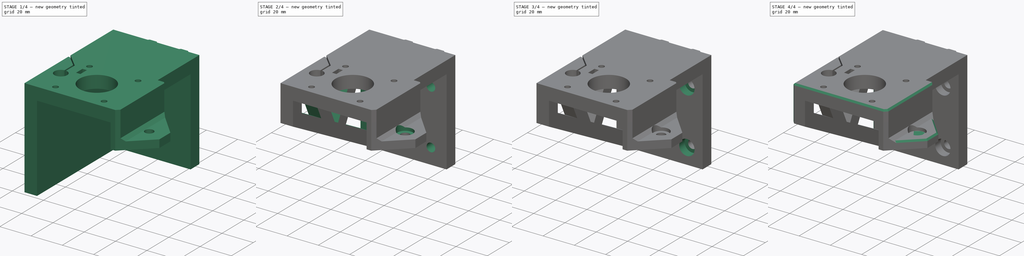
[diagram: build sequence overview — one tinted view per stage of 4, left to right]
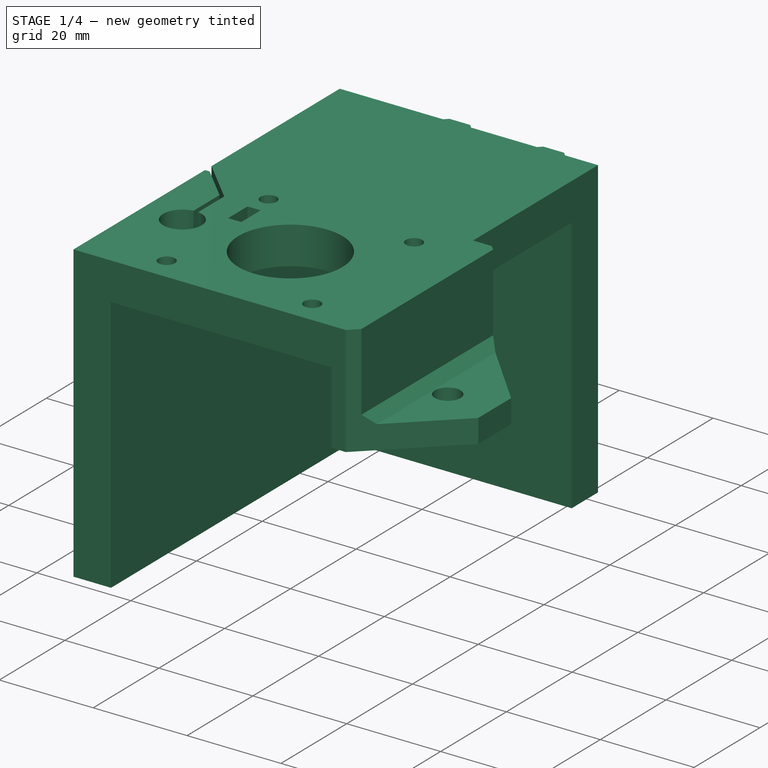
[diagram: stage 1 of 4 — iso view after this stage's code; geometry added in this stage tinted green]
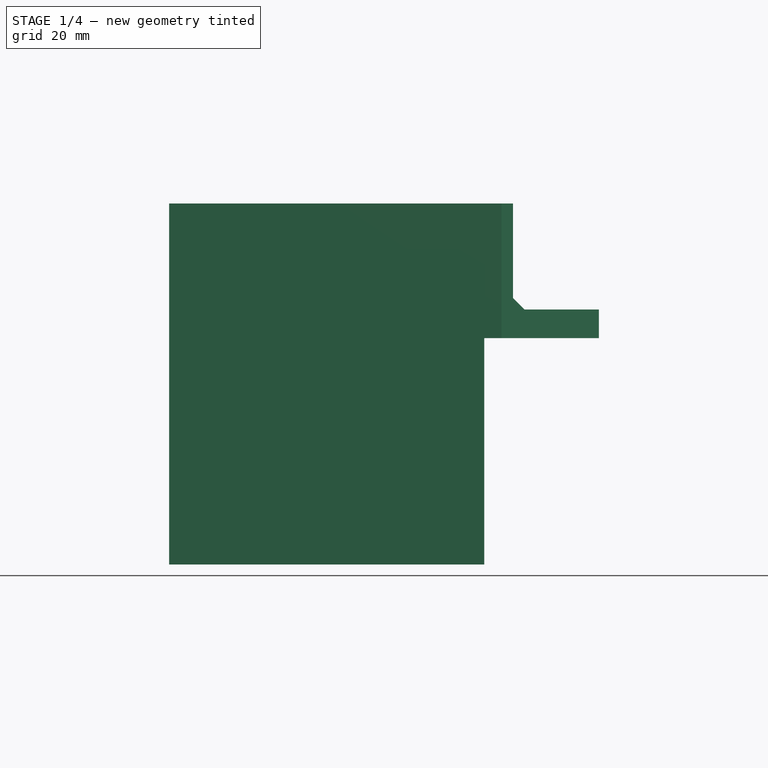
[diagram: stage 1 of 4 — front view after this stage's code; geometry added in this stage tinted green]
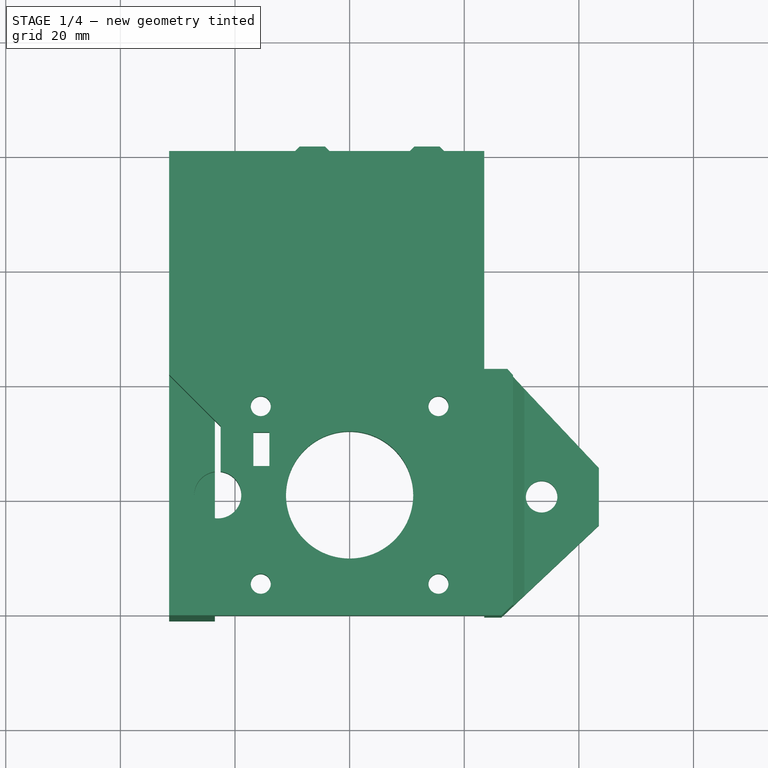
[diagram: stage 1 of 4 — top view after this stage's code; geometry added in this stage tinted green]
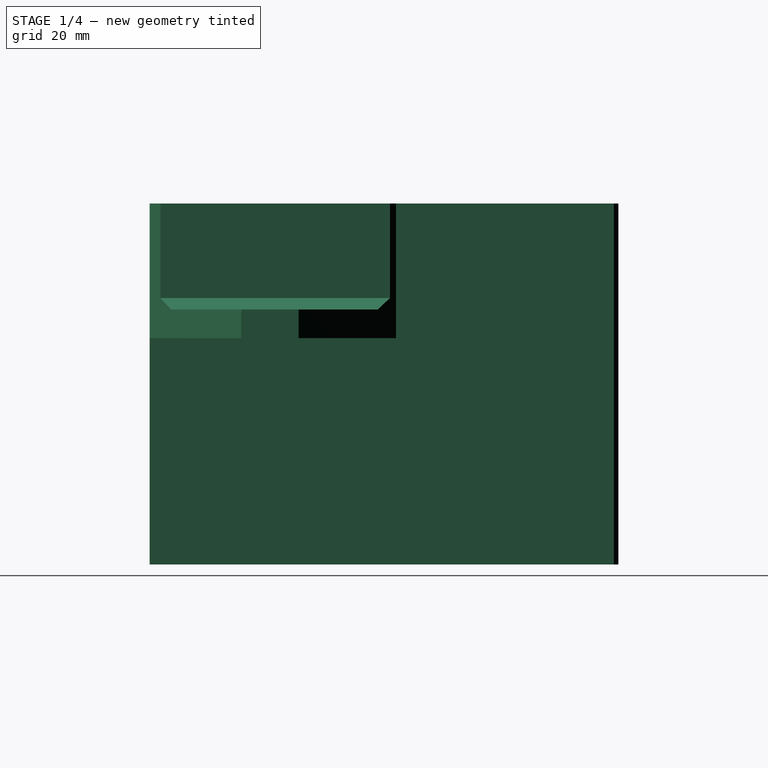
[diagram: stage 1 of 4 — right view after this stage's code; geometry added in this stage tinted green]
FCSTD DOCUMENT  (FreeCAD 0.19R24276 (Git))
Label: _Z_Motor_Mount_L
License: All rights reserved
LicenseURL: http://en.wikipedia.org/wiki/All_rights_reserved
objects: Sketcher::SketchObject×11, PartDesign::Pocket×8, PartDesign::Pad×2, PartDesign::Chamfer×2, PartDesign::Hole×1, PartDesign::Body×1
note: 38 computed .brp shape members not serialized (recipe doc carries the construction recipe); baked Part::Feature solids carry a one-line shape summary decoded from their .brp

FEATURE [Sketcher::SketchObject] Sketch
  FullyConstrained = true
  MapMode = 5
  Support = -> [XY_Plane]
  sketch-geometry (28):
    g0: LineSegment StartX=-6.5 StartY=60.8 StartZ=0 EndX=-6.5 EndY=60 EndZ=0
    g1: LineSegment StartX=13.5 StartY=60.8 StartZ=0 EndX=13.5 EndY=60 EndZ=0
    g2: Circle CenterX=0 CenterY=0 CenterZ=0 NormalX=0 NormalY=0 NormalZ=1 AngleXU=0 Radius=11.1
    g3: LineSegment StartX=-31.5 StartY=60 StartZ=0 EndX=-9.5 EndY=60 EndZ=0
    g4: LineSegment StartX=23.5 StartY=60 StartZ=0 EndX=23.5 EndY=22 EndZ=0
    g5: LineSegment StartX=26.5 StartY=-21 StartZ=0 EndX=-31.5 EndY=-21 EndZ=0
    g6: LineSegment StartX=-31.5 StartY=-21 StartZ=0 EndX=-31.5 EndY=60 EndZ=0
    g7: LineSegment StartX=10.5 StartY=60 StartZ=0 EndX=11.3 EndY=60.8 EndZ=0
    g8: LineSegment StartX=11.3 StartY=60.8 StartZ=0 EndX=15.7 EndY=60.8 EndZ=0
    g9: LineSegment StartX=15.7 StartY=60.8 StartZ=0 EndX=16.5 EndY=60 EndZ=0
    g10: LineSegment StartX=-9.5 StartY=60 StartZ=0 EndX=-8.7 EndY=60.8 EndZ=0
    g11: LineSegment StartX=-8.7 StartY=60.8 StartZ=0 EndX=-4.3 EndY=60.8 EndZ=0
    g12: LineSegment StartX=-4.3 StartY=60.8 StartZ=0 EndX=-3.5 EndY=60 EndZ=0
    g13: LineSegment StartX=-3.5 StartY=60 StartZ=0 EndX=10.5 EndY=60 EndZ=0
    g14: LineSegment StartX=16.5 StartY=60 StartZ=0 EndX=23.5 EndY=60 EndZ=0
    g15: LineSegment StartX=-15.5 StartY=15.5 StartZ=0 EndX=15.5 EndY=15.5 EndZ=0
    g16: LineSegment StartX=15.5 StartY=15.5 StartZ=0 EndX=15.5 EndY=-15.5 EndZ=0
    g17: LineSegment StartX=15.5 StartY=-15.5 StartZ=0 EndX=-15.5 EndY=-15.5 EndZ=0
    g18: LineSegment StartX=-15.5 StartY=-15.5 StartZ=0 EndX=-15.5 EndY=15.5 EndZ=0
    g19: Circle CenterX=-15.5 CenterY=-15.5 CenterZ=0 NormalX=0 NormalY=0 NormalZ=1 AngleXU=0 Radius=1.75
    g20: Circle CenterX=15.5 CenterY=-15.5 CenterZ=0 NormalX=0 NormalY=0 NormalZ=1 AngleXU=0 Radius=1.75
    g21: Circle CenterX=15.5 CenterY=15.5 CenterZ=0 NormalX=0 NormalY=0 NormalZ=1 AngleXU=0 Radius=1.75
    g22: Circle CenterX=-15.5 CenterY=15.5 CenterZ=0 NormalX=0 NormalY=0 NormalZ=1 AngleXU=0 Radius=1.75
    g23: LineSegment StartX=43.5 StartY=-5 StartZ=0 EndX=43.5 EndY=5 EndZ=0
    g24: LineSegment StartX=23.5 StartY=22 StartZ=0 EndX=27.5 EndY=22 EndZ=0
    g25: LineSegment StartX=27.5 StartY=22 StartZ=0 EndX=43.5 EndY=5 EndZ=0
    g26: LineSegment StartX=43.5 StartY=-5 StartZ=0 EndX=26.5 EndY=-21 EndZ=0
    g27: Circle CenterX=33.5 CenterY=0 CenterZ=0 NormalX=0 NormalY=0 NormalZ=1 AngleXU=0 Radius=2.75
  constraints (73):
    c: Vertical(g0)
    c: Diameter(g2) = 22.2
    c: Coincident(g5,g6)
    c: Coincident(g6,g3)
    c: Horizontal(g3)
    c: Horizontal(g5)
    c: Vertical(g4)
    c: Vertical(g6)
    c: DistanceY(g14) = 60
    c: Coincident(g7,g8)
    c: Horizontal(g8)
    c: Coincident(g8,g9)
    c: Coincident(g10,g11)
    c: Coincident(g11,g12)
    c: Coincident(g3,g10)
    c: Tangent(g3,g13)
    c: Coincident(g12,g13)
    c: Tangent(g13,g14)
    c: Coincident(g9,g14)
    c: Coincident(g7,g13)
    c: Symmetric(g9,g7,g1)
    c: Symmetric(g12,g3,g0)
    c: PointOnObject(g0,g11)
    c: PointOnObject(g1,g8)
    c: Symmetric(g7,g8,g1)
    c: Symmetric(g10,g11,g0)
    c: Perpendicular(g12,g10)
    c: Equal(g11,g8)
    c: Equal(g1,g0)
    c: DistanceX(g1,g4) = 10
    c: DistanceX(g0,g1) = 20
    c: DistanceY(g12,g11) = 0.8
    c: DistanceX(g3,g12) = 6
    c: Coincident(g2,g-1)
    c: DistanceY(g6,g6) = 81
    c: Coincident(g15,g16)
    c: Coincident(g16,g17)
    c: Coincident(g17,g18)
    c: Coincident(g18,g15)
    c: Horizontal(g15)
    c: Horizontal(g17)
    c: Vertical(g16)
    c: Vertical(g18)
    c: Equal(g17,g16)
    c: Symmetric(g17,g15,g2)
    c: Coincident(g19,g17)
    c: Coincident(g20,g16)
    c: Coincident(g21,g15)
    c: Coincident(g22,g15)
    c: Diameter(g19) = 3.5
    c: Equal(g19,g20)
    c: Equal(g20,g21)
    c: Equal(g21,g22)
    c: Perpendicular(g9,g7)
    c: DistanceX(g15,g15) = 31
    c: Symmetric(g23,g23,g-1)
    c: DistanceY(g5,g4) = 43
    c: DistanceX(g-1,g4) = 23.5
    c: DistanceX(g3,g4) = 55
    c: Coincident(g4,g14)
    c: DistanceX(g-1,g23) = 43.5
    c: Coincident(g24,g4)
    c: Horizontal(g24)
    c: Coincident(g25,g24)
    c: Coincident(g25,g23)
    c: Coincident(g26,g23)
    c: Coincident(g26,g5)
    c: Perpendicular(g26,g25)
    c: DistanceX(g24,g24) = 4
    c: Equal(g26,g25)
    c: PointOnObject(g27,g-1)
    c: Diameter(g27) = 5.5
    c: DistanceX(g4,g27) = 10
FEATURE [PartDesign::Pad] Pad
  AllowMultiFace = false
  Direction = (1,1,1)
  Length = 63
  Length2 = 100
  Profile = -> Sketch
  Type = 0
FEATURE [Sketcher::SketchObject] Sketch001
  AttachmentOffset = pos=(0,0,21) rot=(0,0,1;0rad)
  FullyConstrained = true
  MapMode = 5
  Placement = pos=(0,-21,-4.7e-15) rot=(1,0,0;1.5708rad)
  Support = -> [XZ_Plane]
  sketch-geometry (12):
    g0: LineSegment StartX=23.5 StartY=55 StartZ=0 EndX=-23.5 EndY=55 EndZ=0
    g1: LineSegment StartX=-23.5 StartY=55 StartZ=0 EndX=-23.5 EndY=0 EndZ=0
    g2: LineSegment StartX=23.5 StartY=39.5 StartZ=0 EndX=23.5 EndY=55 EndZ=0
    g3: LineSegment StartX=23.5 StartY=39.5 StartZ=0 EndX=44.5 EndY=39.5 EndZ=0
    g4: LineSegment StartX=46.5 StartY=64 StartZ=0 EndX=46.5 EndY=0 EndZ=0
    g5: LineSegment StartX=-23.5 StartY=0 StartZ=0 EndX=46.5 EndY=0 EndZ=0
    g6: LineSegment StartX=28.5 StartY=64 StartZ=0 EndX=46.5 EndY=64 EndZ=0
    g7: LineSegment StartX=30.5 StartY=44.5 StartZ=0 EndX=44.5 EndY=44.5 EndZ=0
    g8: LineSegment StartX=44.5 StartY=44.5 StartZ=0 EndX=44.5 EndY=39.5 EndZ=0
    g9: LineSegment StartX=28.5 StartY=64 StartZ=0 EndX=28.5 EndY=46.5 EndZ=0
    g10: LineSegment StartX=23.5 StartY=55 StartZ=0 EndX=28.5 EndY=55 EndZ=0
    g11: LineSegment StartX=28.5 StartY=46.5 StartZ=0 EndX=30.5 EndY=44.5 EndZ=0
  constraints (35):
    c: Coincident(g0,g1)
    c: Coincident(g2,g0)
    c: Vertical(g1)
    c: Vertical(g2)
    c: Horizontal(g3)
    c: Vertical(g4)
    c: Coincident(g3,g2)
    c: Symmetric(g0,g0,g-2)
    c: DistanceX(g0,g0) = 47
    c: DistanceY(g1,g1) = 55
    c: Coincident(g5,g1)
    c: Coincident(g5,g4)
    c: Horizontal(g5)
    c: PointOnObject(g-1,g5)
    c: DistanceX(g3,g4) = 23
    c: Horizontal(g6)
    c: Horizontal(g7)
    c: Coincident(g7,g8)
    c: Vertical(g8)
    c: Coincident(g4,g6)
    c: DistanceY(g4,g3) = 39.5
    c: Coincident(g8,g3)
    c: DistanceX(g3,g3) = 21
    c: DistanceY(g8,g8) = 5
    c: Coincident(g9,g6)
    c: Vertical(g9)
    c: Coincident(g10,g0)
    c: PointOnObject(g10,g9)
    c: Horizontal(g10)
    c: Equal(g8,g10)
    c: DistanceY(g4,g4) = 64
    c: Coincident(g11,g7)
    c: Angle(g7,g11) = 2.35619
    c: DistanceY(g7,g9) = 2
    c: Coincident(g11,g9)
FEATURE [Sketcher::SketchObject] Sketch002
  AttachmentOffset = pos=(0,0,63) rot=(0,0,1;0rad)
  FullyConstrained = true
  MapMode = 5
  Placement = pos=(0,0,63) rot=(0,0,1;0rad)
  Support = -> [XY_Plane]
  expr: .AttachmentOffset.Base.z = Pad.Length
  sketch-geometry (13):
    g0: ArcOfCircle CenterX=-23 CenterY=0 CenterZ=0 NormalX=0 NormalY=0 NormalZ=1 AngleXU=0 Radius=4.1 StartAngle=1.69305 EndAngle=7.73173
    g1: LineSegment StartX=-31.5 StartY=21 StartZ=0 EndX=-31.5 EndY=19 EndZ=0
    g2: LineSegment StartX=-31.5 StartY=19 StartZ=0 EndX=-30.5 EndY=19 EndZ=0
    g3: LineSegment StartX=-30.5 StartY=19 StartZ=0 EndX=-23.5 EndY=12 EndZ=0
    g4: LineSegment StartX=-23.5 StartY=12 StartZ=0 EndX=-23.5 EndY=4.0694 EndZ=0
    g5: LineSegment StartX=-22.5 StartY=4.0694 StartZ=0 EndX=-22.5 EndY=12 EndZ=0
    g6: LineSegment StartX=-22.5 StartY=12 StartZ=0 EndX=-31.5 EndY=21 EndZ=0
    g7: LineSegment StartX=-23 StartY=0 StartZ=0 EndX=-23 EndY=12 EndZ=0
    g8: LineSegment StartX=-16.8 StartY=10.95 StartZ=0 EndX=-14 EndY=10.95 EndZ=0
    g9: LineSegment StartX=-14 StartY=10.95 StartZ=0 EndX=-14 EndY=5.05 EndZ=0
    g10: LineSegment StartX=-14 StartY=5.05 StartZ=0 EndX=-16.8 EndY=5.05 EndZ=0
    g11: LineSegment StartX=-16.8 StartY=5.05 StartZ=0 EndX=-16.8 EndY=10.95 EndZ=0
    g12: LineSegment StartX=-16.8 StartY=8 StartZ=0 EndX=0 EndY=8 EndZ=0
  constraints (39):
    c: PointOnObject(g0,g-1)
    c: DistanceX(g0,g-1) = 23
    c: Diameter(g0) = 8.2
    c: Vertical(g1)
    c: Coincident(g1,g2)
    c: Horizontal(g2)
    c: Coincident(g2,g3)
    c: Coincident(g3,g4)
    c: Vertical(g4)
    c: Vertical(g5)
    c: Coincident(g5,g6)
    c: Coincident(g6,g1)
    c: Coincident(g7,g0)
    c: Vertical(g7)
    c: Horizontal(g7,g3)
    c: Symmetric(g3,g5,g7)
    c: Coincident(g0,g5)
    c: Coincident(g0,g4)
    c: DistanceY(g0,g5) = 12
    c: DistanceX(g3,g5) = 1
    c: Angle(g3,g4) = 2.35619
    c: Parallel(g3,g6)
    c: DistanceX(g2,g2) = 1
    c: DistanceX(g1,g0) = 8.5
    c: Coincident(g8,g9)
    c: Coincident(g9,g10)
    c: Coincident(g10,g11)
    c: Coincident(g11,g8)
    c: Horizontal(g8)
    c: Horizontal(g10)
    c: Vertical(g9)
    c: Vertical(g11)
    c: DistanceX(g8,g8) = 2.8
    c: DistanceY(g9,g9) = 5.9
    c: PointOnObject(g12,g11)
    c: PointOnObject(g12,g-2)
    c: Symmetric(g8,g10,g12)
    c: DistanceY(g-1,g12) = 8
    c: DistanceX(g0,g9) = 9
FEATURE [PartDesign::Pocket] Pocket001
  AllowMultiFace = false
  BaseFeature = -> Pad
  Length = 8
  Length2 = 100
  Profile = -> Sketch002
  Type = 0
FEATURE [PartDesign::Pocket] Pocket
  AllowMultiFace = false
  BaseFeature = -> Pocket001
  Length = 73
  Length2 = 100
  Profile = -> Sketch001
  Type = 0
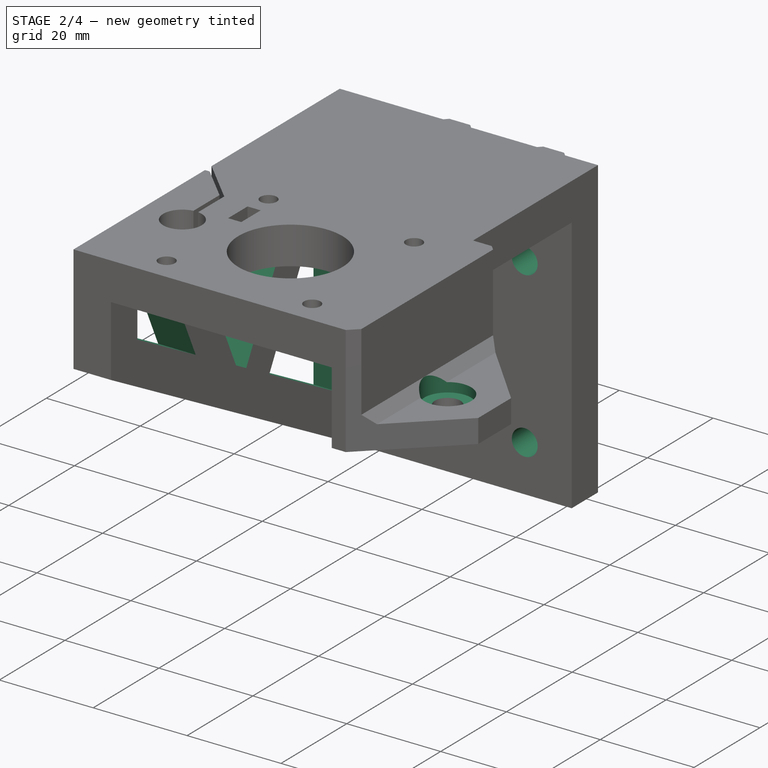
[diagram: stage 2 of 4 — iso view after this stage's code; geometry added in this stage tinted green]
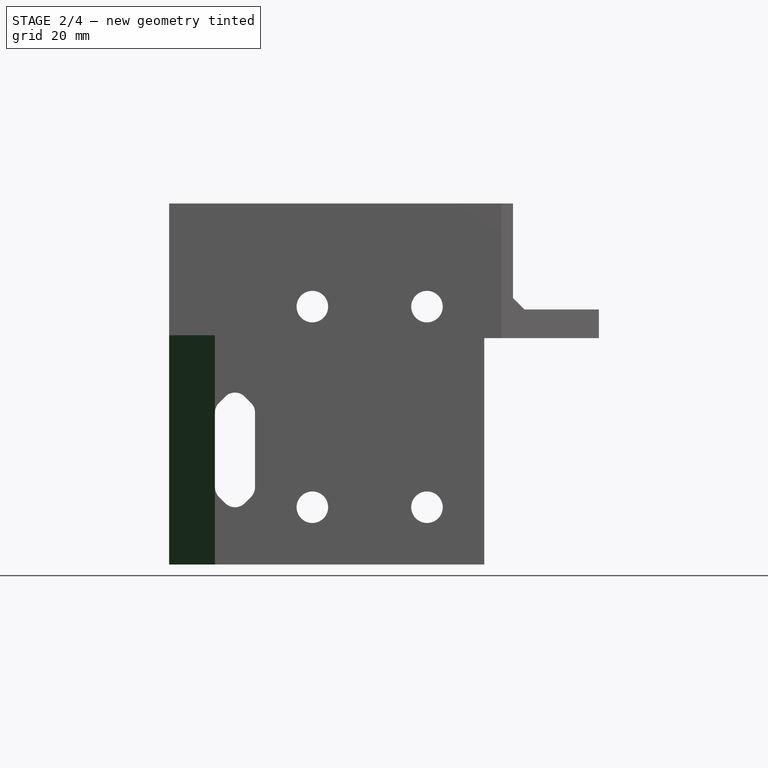
[diagram: stage 2 of 4 — front view after this stage's code; geometry added in this stage tinted green]
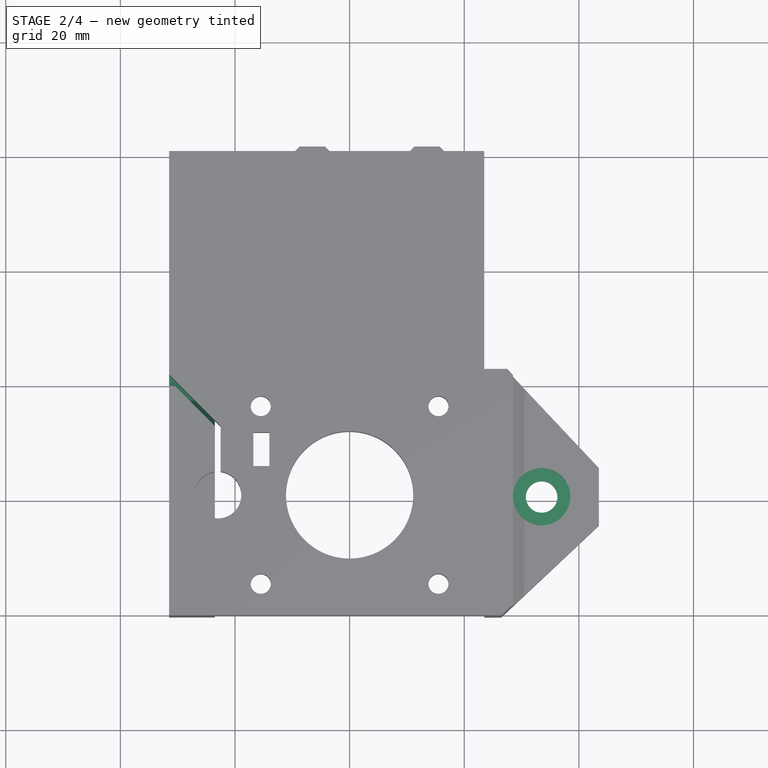
[diagram: stage 2 of 4 — top view after this stage's code; geometry added in this stage tinted green]
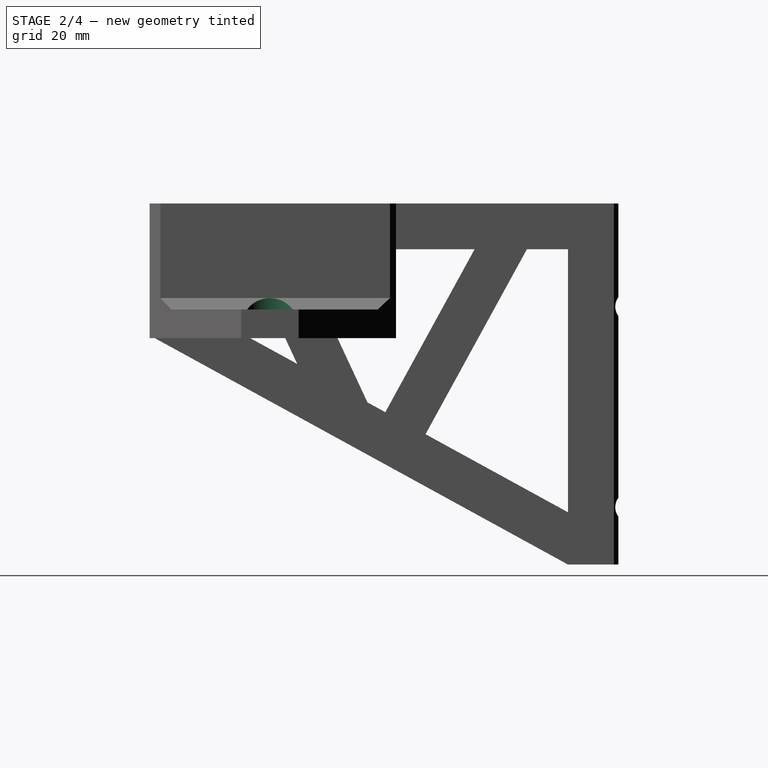
[diagram: stage 2 of 4 — right view after this stage's code; geometry added in this stage tinted green]
FEATURE [Sketcher::SketchObject] Sketch004
  AttachmentOffset = pos=(0,0,42.5) rot=(0,0,1;0rad)
  FullyConstrained = true
  MapMode = 5
  Placement = pos=(0,0,42.5) rot=(0,0,1;0rad)
  Support = -> [XY_Plane]
  sketch-geometry (1):
    g0: Circle CenterX=33.5 CenterY=0 CenterZ=0 NormalX=0 NormalY=0 NormalZ=1 AngleXU=0 Radius=4.99
  constraints (3):
    c: PointOnObject(g0,g-1)
    c: DistanceX(g-1,g0) = 33.5
    c: Diameter(g0) = 9.98
FEATURE [Sketcher::SketchObject] Sketch005
  AttachmentOffset = pos=(0,0,-52) rot=(0,0,1;0rad)
  FullyConstrained = true
  MapMode = 5
  Placement = pos=(0,52,1.15e-14) rot=(1,0,0;1.5708rad)
  Support = -> [XZ_Plane]
  sketch-geometry (22):
    g0: Circle CenterX=-6.5 CenterY=45 CenterZ=0 NormalX=0 NormalY=0 NormalZ=1 AngleXU=0 Radius=2.75
    g1: Circle CenterX=-6.5 CenterY=10 CenterZ=0 NormalX=0 NormalY=0 NormalZ=1 AngleXU=0 Radius=2.75
    g2: Circle CenterX=13.5 CenterY=45 CenterZ=0 NormalX=0 NormalY=0 NormalZ=1 AngleXU=0 Radius=2.75
    g3: Circle CenterX=13.5 CenterY=10 CenterZ=0 NormalX=0 NormalY=0 NormalZ=1 AngleXU=0 Radius=2.75
    g4: LineSegment StartX=-6.5 StartY=45 StartZ=0 EndX=13.5 EndY=45 EndZ=0
    g5: LineSegment StartX=-6.5 StartY=10 StartZ=0 EndX=-6.5 EndY=45 EndZ=0
    g6: LineSegment StartX=13.5 StartY=45 StartZ=0 EndX=13.5 EndY=10 EndZ=0
    g7: LineSegment StartX=-6.5 StartY=10 StartZ=0 EndX=13.5 EndY=10 EndZ=0
    g8: LineSegment StartX=-16.5 StartY=26.5 StartZ=0 EndX=-16.5 EndY=13.5 EndZ=0
    g9: LineSegment StartX=-23.5 StartY=13.5 StartZ=0 EndX=-23.5 EndY=26.5 EndZ=0
    g10: LineSegment StartX=-23.5 StartY=20 StartZ=0 EndX=-16.5 EndY=20 EndZ=0
    g11: LineSegment StartX=-22.7971 StartY=28.1971 StartZ=0 EndX=-21.6971 EndY=29.2971 EndZ=0
    g12: LineSegment StartX=-17.2029 StartY=28.1971 StartZ=0 EndX=-18.3029 EndY=29.2971 EndZ=0
    g13: LineSegment StartX=-22.7971 StartY=11.8029 StartZ=0 EndX=-21.6971 EndY=10.7029 EndZ=0
    g14: LineSegment StartX=-17.2029 StartY=11.8029 StartZ=0 EndX=-18.3029 EndY=10.7029 EndZ=0
    g15: ArcOfCircle CenterX=-20 CenterY=27.6 CenterZ=0 NormalX=0 NormalY=0 NormalZ=1 AngleXU=0 Radius=2.4 StartAngle=0.785398 EndAngle=2.35619
    g16: ArcOfCircle CenterX=-21.1 CenterY=26.5 CenterZ=0 NormalX=0 NormalY=0 NormalZ=1 AngleXU=0 Radius=2.4 StartAngle=2.35619 EndAngle=3.14159
    g17: ArcOfCircle CenterX=-18.9 CenterY=26.5 CenterZ=0 NormalX=0 NormalY=0 NormalZ=1 AngleXU=0 Radius=2.4 StartAngle=5e-16 EndAngle=0.785398
    g18: ArcOfCircle CenterX=-21.1 CenterY=13.5 CenterZ=0 NormalX=0 NormalY=0 NormalZ=1 AngleXU=0 Radius=2.4 StartAngle=3.14159 EndAngle=3.92699
    g19: ArcOfCircle CenterX=-20 CenterY=12.4 CenterZ=0 NormalX=0 NormalY=0 NormalZ=1 AngleXU=0 Radius=2.4 StartAngle=3.92699 EndAngle=5.49779
    g20: ArcOfCircle CenterX=-18.9 CenterY=13.5 CenterZ=0 NormalX=0 NormalY=0 NormalZ=1 AngleXU=0 Radius=2.4 StartAngle=5.49779 EndAngle=6.28319
    g21: LineSegment StartX=-20 StartY=27.6 StartZ=0 EndX=-20 EndY=12.4 EndZ=0
  constraints (54):
    c: Coincident(g4,g0)
    c: Coincident(g4,g2)
    c: Horizontal(g4)
    c: Coincident(g5,g1)
    c: Coincident(g5,g0)
    c: Vertical(g5)
    c: Coincident(g6,g2)
    c: Coincident(g6,g3)
    c: Vertical(g6)
    c: Coincident(g7,g1)
    c: Coincident(g7,g3)
    c: Horizontal(g7)
    c: DistanceY(g-1,g3) = 10
    c: DistanceY(g6,g6) = 35
    c: DistanceX(g4,g4) = 20
    c: Equal(g0,g2)
    c: Equal(g2,g3)
    c: Equal(g3,g1)
    c: Diameter(g1) = 5.5
    c: DistanceX(g-1,g3) = 13.5
    c: Vertical(g8)
    c: Vertical(g9)
    c: DistanceY(g-1,g10) = 20
    c: Equal(g11,g12)
    c: Equal(g12,g13)
    c: Equal(g13,g14)
    c: Perpendicular(g11,g12)
    c: Tangent(g11,g15) = 1.5708
    c: Tangent(g12,g15) = -1.5708
    c: Tangent(g9,g16) = 1.5708
    c: Tangent(g11,g16) = 1.5708
    c: Tangent(g12,g17) = -1.5708
    c: Tangent(g8,g17) = 1.5708
    c: Tangent(g9,g18) = 1.5708
    c: Tangent(g13,g18) = -1.5708
    c: Tangent(g13,g19) = -1.5708
    c: Tangent(g14,g19) = 1.5708
    c: Tangent(g14,g20) = 1.5708
    c: Tangent(g8,g20) = 1.5708
    c: Coincident(g21,g15)
    c: Coincident(g21,g19)
    c: Symmetric(g18,g16,g10)
    c: Symmetric(g17,g20,g10)
    c: PointOnObject(g10,g8)
    c: PointOnObject(g10,g9)
    c: DistanceY(g9,g9) = 13
    c: DistanceX(g9,g8) = 7
    c: DistanceX(g19,g-1) = 20
    c: Equal(g16,g15)
    c: Equal(g15,g18)
    c: Equal(g18,g19)
    c: Radius(g19) = 2.4
    c: Equal(g19,g20)
    c: Equal(g9,g8)
FEATURE [Sketcher::SketchObject] Sketch006
  AttachmentOffset = pos=(0,0,-52) rot=(0,0,1;0rad)
  FullyConstrained = true
  MapMode = 5
  Placement = pos=(0,52,1.15e-14) rot=(1,0,0;1.5708rad)
  Support = -> [XZ_Plane]
  sketch-geometry (8):
    g0: Circle CenterX=-6.5 CenterY=45 CenterZ=0 NormalX=0 NormalY=0 NormalZ=1 AngleXU=0 Radius=4.9
    g1: Circle CenterX=-6.5 CenterY=10 CenterZ=0 NormalX=0 NormalY=0 NormalZ=1 AngleXU=0 Radius=4.9
    g2: Circle CenterX=13.5 CenterY=45 CenterZ=0 NormalX=0 NormalY=0 NormalZ=1 AngleXU=0 Radius=4.9
    g3: Circle CenterX=13.5 CenterY=10 CenterZ=0 NormalX=0 NormalY=0 NormalZ=1 AngleXU=0 Radius=4.9
    g4: LineSegment StartX=-6.5 StartY=45 StartZ=0 EndX=13.5 EndY=45 EndZ=0
    g5: LineSegment StartX=-6.5 StartY=10 StartZ=0 EndX=-6.5 EndY=45 EndZ=0
    g6: LineSegment StartX=13.5 StartY=45 StartZ=0 EndX=13.5 EndY=10 EndZ=0
    g7: LineSegment StartX=-6.5 StartY=10 StartZ=0 EndX=13.5 EndY=10 EndZ=0
  constraints (20):
    c: Coincident(g4,g0)
    c: Coincident(g4,g2)
    c: Horizontal(g4)
    c: Coincident(g5,g1)
    c: Coincident(g5,g0)
    c: Vertical(g5)
    c: Coincident(g6,g2)
    c: Coincident(g6,g3)
    c: Vertical(g6)
    c: Coincident(g7,g1)
    c: Coincident(g7,g3)
    c: Horizontal(g7)
    c: DistanceY(g-1,g3) = 10
    c: DistanceY(g6,g6) = 35
    c: DistanceX(g4,g4) = 20
    c: Equal(g0,g2)
    c: Equal(g2,g3)
    c: Equal(g3,g1)
    c: Diameter(g1) = 9.8
    c: DistanceX(g-1,g3) = 13.5
FEATURE [Sketcher::SketchObject] Sketch003
  AttachmentOffset = pos=(0,0,-23.5) rot=(0,0,1;0rad)
  FullyConstrained = true
  MapMode = 5
  Placement = pos=(-23.5,5.2e-15,-5.2e-15) rot=(0.57735,0.57735,0.57735;2.0944rad)
  Support = -> [YZ_Plane]
  sketch-geometry (21):
    g0: LineSegment StartX=-21 StartY=40 StartZ=0 EndX=52 EndY=0 EndZ=0
    g1: LineSegment StartX=52 StartY=0 StartZ=0 EndX=-21 EndY=0 EndZ=0
    g2: LineSegment StartX=-21 StartY=0 StartZ=0 EndX=-21 EndY=40 EndZ=0
    g3: LineSegment StartX=-13 StartY=55 StartZ=0 EndX=-4.56113 EndY=55 EndZ=0
    g4: LineSegment StartX=35.7013 StartY=55 StartZ=0 EndX=20.1312 EndY=26.5846 EndZ=0
    g5: LineSegment StartX=-13 StartY=44.7387 StartZ=0 EndX=-13 EndY=55 EndZ=0
    g6: LineSegment StartX=44.8235 StartY=55 StartZ=0 EndX=27.147 EndY=22.7403 EndZ=0
    g7: LineSegment StartX=27.147 StartY=22.7403 StartZ=0 EndX=52 EndY=9.12226 EndZ=0
    g8: LineSegment StartX=52 StartY=9.12226 StartZ=0 EndX=52 EndY=55 EndZ=0
    g9: LineSegment StartX=20.1312 StartY=26.5846 StartZ=0 EndX=27.147 EndY=22.7403 EndZ=0
    g10: LineSegment StartX=-13 StartY=44.7387 StartZ=0 EndX=-16.8443 EndY=37.7229 EndZ=0
    g11: LineSegment StartX=4.56113 StartY=55 StartZ=0 EndX=17.0153 EndY=28.292 EndZ=0
    g12: LineSegment StartX=-13 StartY=44.7387 StartZ=0 EndX=4.76224 EndY=35.006 EndZ=0
    g13: LineSegment StartX=-4.56113 StartY=55 StartZ=0 EndX=4.76224 EndY=35.006 EndZ=0
    g14: LineSegment StartX=4.56113 StartY=55 StartZ=0 EndX=35.7013 EndY=55 EndZ=0
    g15: LineSegment StartX=17.0153 StartY=28.292 StartZ=0 EndX=4.76224 EndY=35.006 EndZ=0
    g16: LineSegment StartX=20.1312 StartY=26.5846 StartZ=0 EndX=20.1312 EndY=55 EndZ=0
    g17: LineSegment StartX=44.8235 StartY=55 StartZ=0 EndX=52 EndY=55 EndZ=0
    g18: LineSegment StartX=17.0153 StartY=28.292 StartZ=0 EndX=20.1312 EndY=26.5846 EndZ=0
    g19: LineSegment StartX=-4.56113 StartY=55 StartZ=0 EndX=4.56113 EndY=55 EndZ=0
    g20: LineSegment StartX=35.7013 StartY=55 StartZ=0 EndX=44.8235 EndY=55 EndZ=0
  constraints (56):
    c: PointOnObject(g0,g-1)
    c: Coincident(g0,g1)
    c: Horizontal(g1)
    c: Coincident(g1,g2)
    c: Vertical(g2)
    c: Coincident(g2,g0)
    c: DistanceX(g1,g1) = 73
    c: DistanceX(g1,g-1) = 21
    c: DistanceY(g2,g2) = 40
    c: Coincident(g14,g4)
    c: Coincident(g5,g3)
    c: Coincident(g6,g7)
    c: Coincident(g7,g8)
    c: Vertical(g8)
    c: Vertical(g5)
    c: Parallel(g0,g7)
    c: Coincident(g9,g6)
    c: PointOnObject(g10,g0)
    c: Equal(g10,g9)
    c: Perpendicular(g10,g0)
    c: DistanceX(g0,g3) = 8
    c: DistanceY(g-1,g8) = 55
    c: PointOnObject(g6,g3)
    c: Perpendicular(g6,g7)
    c: Coincident(g12,g5)
    c: Coincident(g13,g12)
    c: Coincident(g3,g13)
    c: Tangent(g3,g14)
    c: Coincident(g11,g14)
    c: Coincident(g15,g12)
    c: PointOnObject(g12,g9)
    c: PointOnObject(g16,g14)
    c: Symmetric(g4,g11,g16)
    c: Parallel(g6,g4)
    c: PointOnObject(g5,g15)
    c: Parallel(g11,g13)
    c: Coincident(g10,g5)
    c: Coincident(g17,g6)
    c: Coincident(g17,g8)
    c: Horizontal(g17)
    c: PointOnObject(g0,g8)
    c: Coincident(g4,g9)
    c: Coincident(g11,g15)
    c: Coincident(g18,g11)
    c: Coincident(g18,g4)
    c: PointOnObject(g4,g7)
    c: PointOnObject(g4,g12)
    c: Coincident(g19,g11)
    c: Coincident(g20,g4)
    c: Coincident(g20,g6)
    c: Coincident(g19,g3)
    c: Equal(g19,g20)
    c: Distance(g9) = 8
    c: Coincident(g16,g4)
    c: Symmetric(g11,g3,g-2)
    c: Angle(g11,g14) = 1.13446
FEATURE [PartDesign::Pocket] Pocket006
  AllowMultiFace = false
  BaseFeature = -> Pocket
  Length = 10
  Length2 = 100
  Profile = -> Sketch003
  Type = 0
FEATURE [PartDesign::Pocket] Pocket003
  AllowMultiFace = false
  BaseFeature = -> Pocket006
  Length = 5
  Length2 = 100
  Profile = -> Sketch004
  Reversed = true
  Type = 0
FEATURE [PartDesign::Pocket] Pocket004
  AllowMultiFace = false
  BaseFeature = -> Pocket003
  Length = 5
  Length2 = 100
  Profile = -> Sketch005
  Type = 1
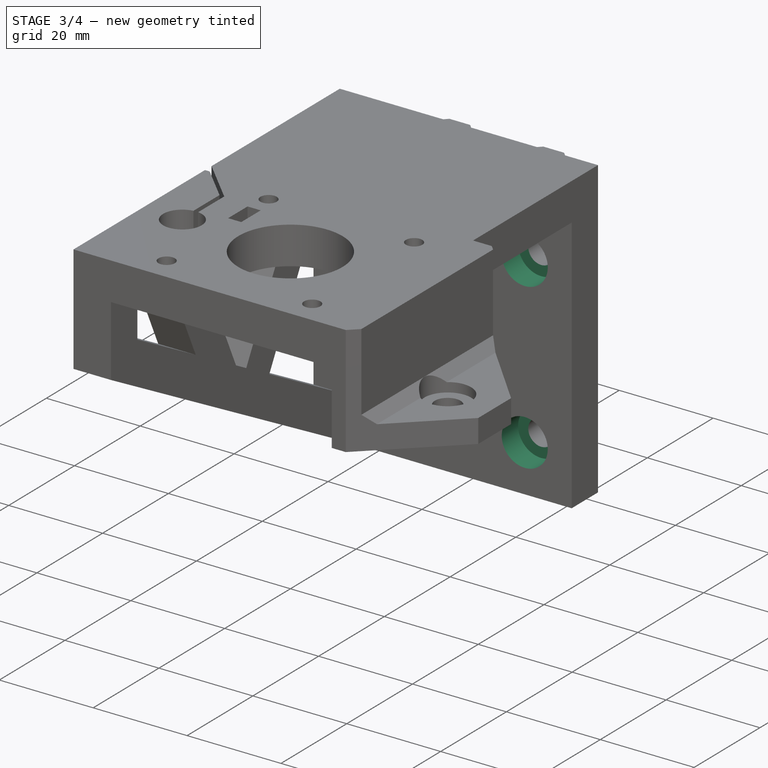
[diagram: stage 3 of 4 — iso view after this stage's code; geometry added in this stage tinted green]
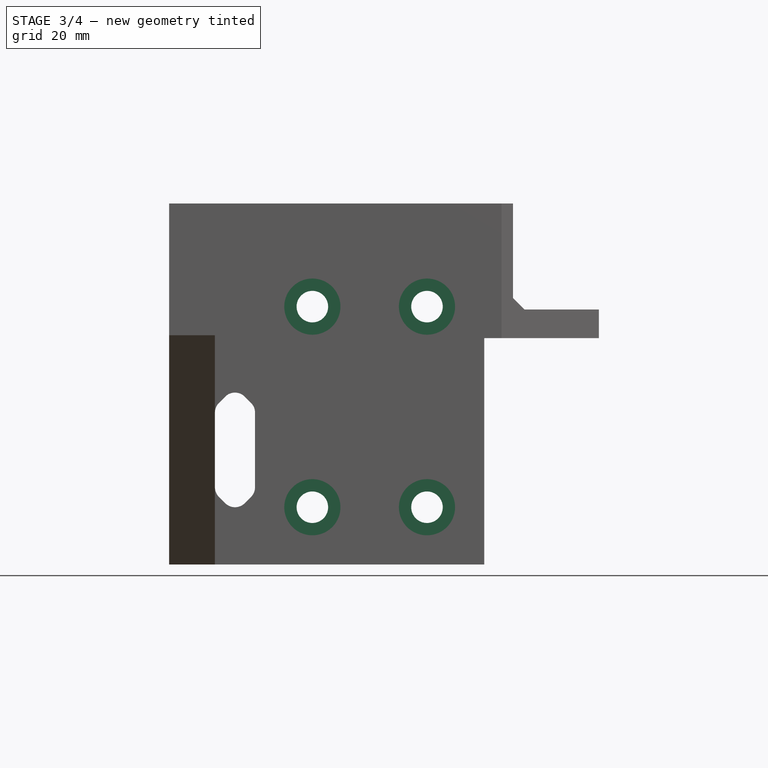
[diagram: stage 3 of 4 — front view after this stage's code; geometry added in this stage tinted green]
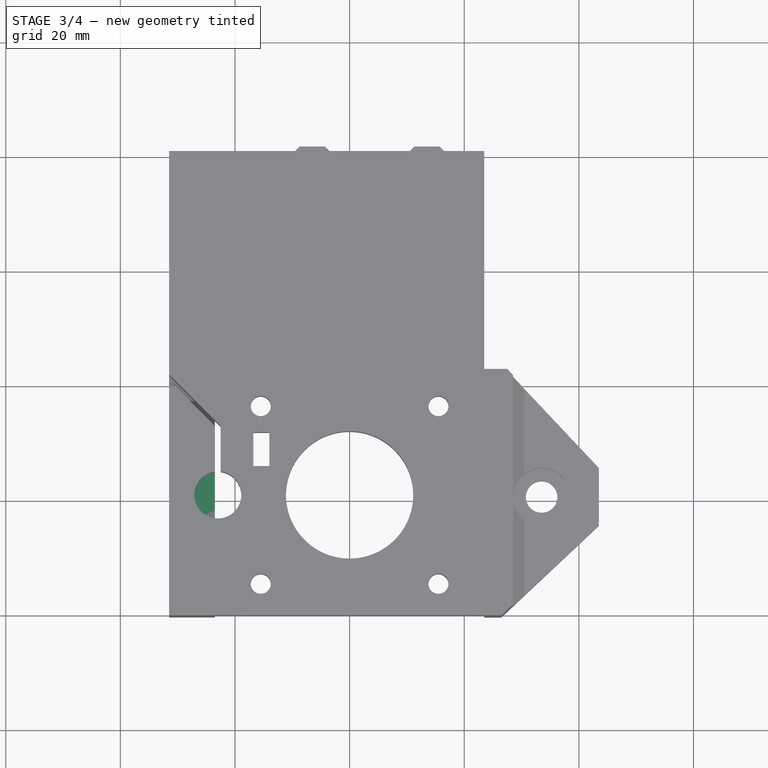
[diagram: stage 3 of 4 — top view after this stage's code; geometry added in this stage tinted green]
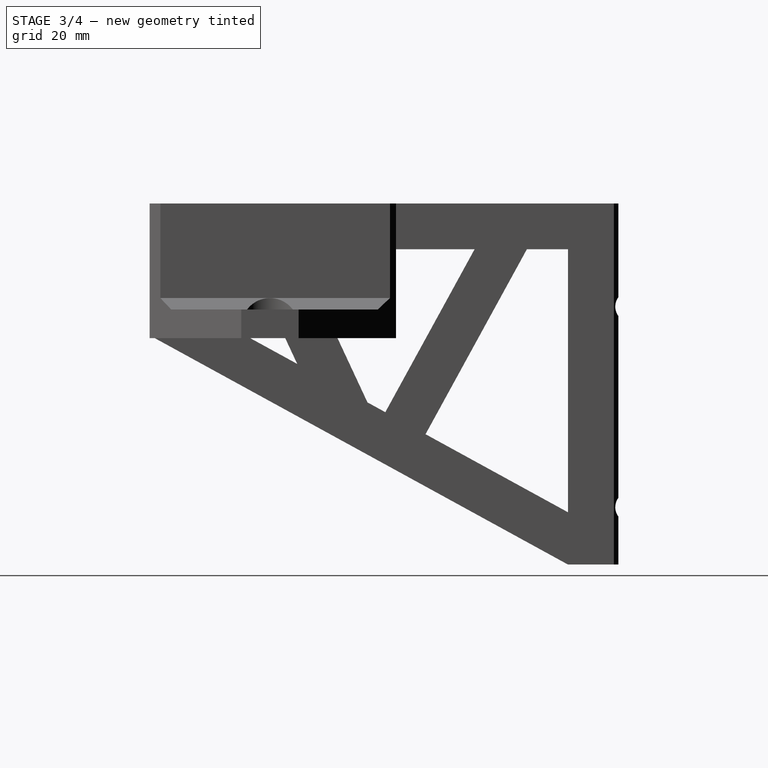
[diagram: stage 3 of 4 — right view after this stage's code; geometry added in this stage tinted green]
FEATURE [PartDesign::Pocket] Pocket005
  AllowMultiFace = false
  BaseFeature = -> Pocket004
  Length = 5
  Length2 = 100
  Profile = -> Sketch006
  Type = 0
FEATURE [Sketcher::SketchObject] Sketch007
  FullyConstrained = true
  MapMode = 5
  Placement = pos=(0,0,0) rot=(1,0,0;1.5708rad)
  Support = -> [XZ_Plane]
  sketch-geometry (3):
    g0: LineSegment StartX=-23 StartY=50 StartZ=0 EndX=-23 EndY=55 EndZ=0
    g1: LineSegment StartX=-23 StartY=55 StartZ=0 EndX=-28 EndY=55 EndZ=0
    g2: LineSegment StartX=-28 StartY=55 StartZ=0 EndX=-23 EndY=50 EndZ=0
  constraints (9):
    c: Vertical(g0)
    c: DistanceY(g-1,g0) = 55
    c: Coincident(g0,g1)
    c: Horizontal(g1)
    c: Coincident(g1,g2)
    c: Coincident(g2,g0)
    c: Equal(g0,g1)
    c: DistanceX(g1,g1) = 5
    c: DistanceX(g0,g-1) = 23
FEATURE [PartDesign::Pocket] Pocket007
  BaseFeature = -> Pocket005
  Length = 14
  Length2 = 100
  Midplane = true
  Profile = -> Sketch007
  Refine = true
  Type = 0
FEATURE [Sketcher::SketchObject] Sketch008
  AttachmentOffset = pos=(0,0,-31.5) rot=(0,0,1;0rad)
  FullyConstrained = true
  MapMode = 5
  Placement = pos=(-31.5,7e-15,-7e-15) rot=(0.57735,0.57735,0.57735;2.0944rad)
  Support = -> [YZ_Plane]
  sketch-geometry (1):
    g0: Circle CenterX=8 CenterY=59 CenterZ=0 NormalX=0 NormalY=0 NormalZ=1 AngleXU=0 Radius=1.75
  constraints (3):
    c: Diameter(g0) = 3.5
    c: DistanceX(g-1,g0) = 8
    c: DistanceY(g-1,g0) = 59
FEATURE [PartDesign::Hole] Hole
  BaseFeature = -> Pocket007
  Depth = 20
  DepthType = 0
  Diameter = 3.6
  DrillForDepth = false
  DrillPoint = 1
  DrillPointAngle = 90
  HoleCutCountersinkAngle = 90
  HoleCutCustomValues = false
  HoleCutDepth = 0
  HoleCutDiameter = 6.1
  HoleCutType = 0
  ModelActualThread = false
  Profile = -> Sketch008
  Refine = true
  Reversed = true
  Tapered = false
  TaperedAngle = 90
  ThreadAngle = 0
  ThreadClass = 0
  ThreadCutOffInner = 0
  ThreadCutOffOuter = 0
  ThreadDirection = 0
  ThreadFit = 0
  ThreadPitch = 0
  ThreadSize = 0
  ThreadType = 0
  Threaded = false
FEATURE [Sketcher::SketchObject] Sketch009
  AttachmentOffset = pos=(0,0,-31.5) rot=(0,0,1;0rad)
  FullyConstrained = true
  MapMode = 5
  Placement = pos=(-31.5,7e-15,-7e-15) rot=(0.57735,0.57735,0.57735;2.0944rad)
  Support = -> [YZ_Plane]
  sketch-geometry (1):
    g0: Circle CenterX=8 CenterY=59 CenterZ=0 NormalX=0 NormalY=0 NormalZ=1 AngleXU=0 Radius=3
  constraints (3):
    c: Diameter(g0) = 6
    c: DistanceX(g-1,g0) = 8
    c: DistanceY(g-1,g0) = 59
FEATURE [PartDesign::Pocket] Pocket008
  BaseFeature = -> Hole
  Length = 3.5
  Length2 = 100
  Profile = -> Sketch009
  Refine = true
  Reversed = true
  Type = 0
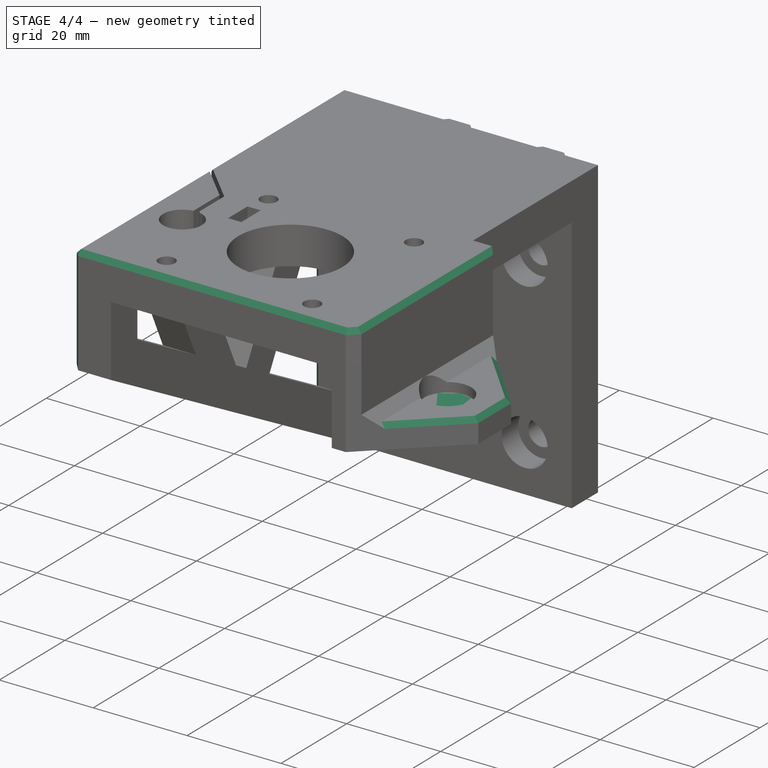
[diagram: stage 4 of 4 — iso view after this stage's code; geometry added in this stage tinted green]
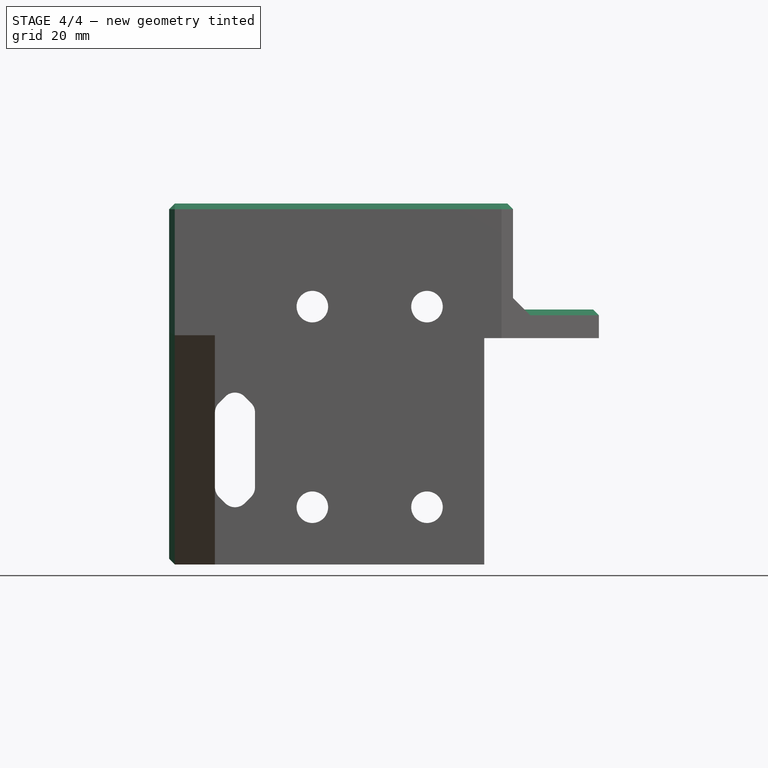
[diagram: stage 4 of 4 — front view after this stage's code; geometry added in this stage tinted green]
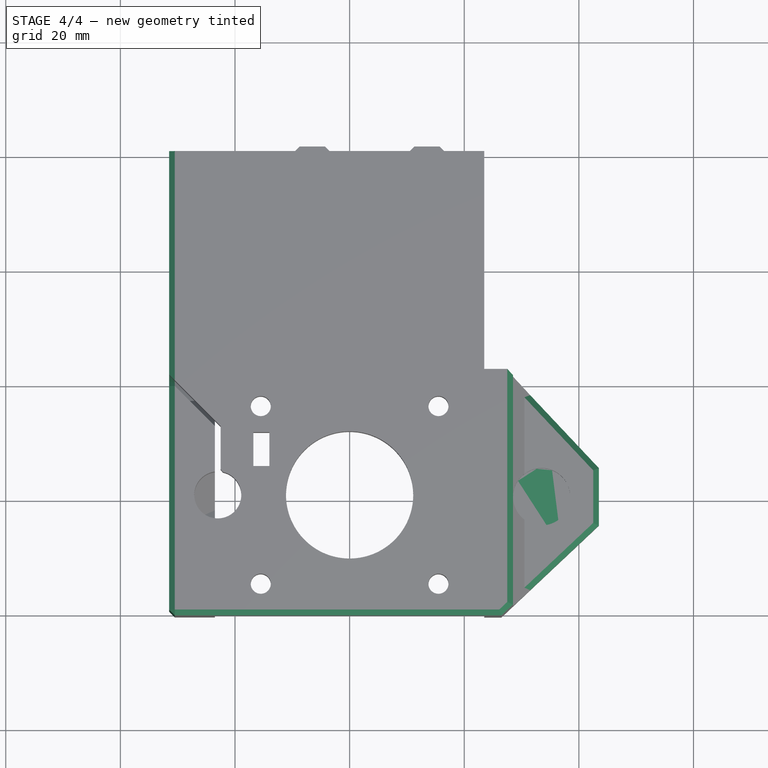
[diagram: stage 4 of 4 — top view after this stage's code; geometry added in this stage tinted green]
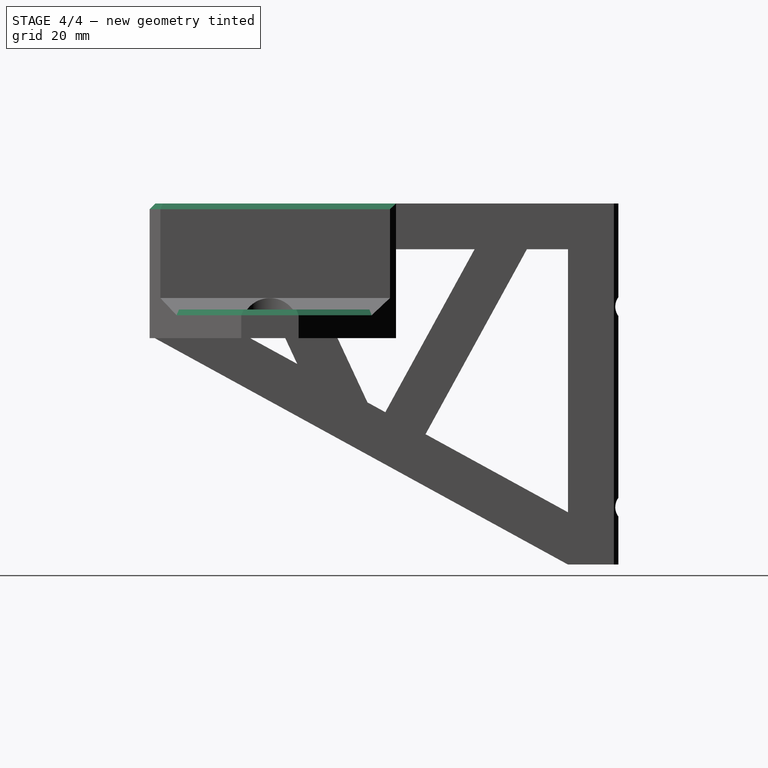
[diagram: stage 4 of 4 — right view after this stage's code; geometry added in this stage tinted green]
FEATURE [PartDesign::Chamfer] Chamfer
  Angle = 45
  Base = -> Pocket008 [Edge87,Edge49,Edge84,Edge86,Edge97,Edge96,Edge57,Edge95,Edge92,Edge91,Edge93,Edge99,Edge98,Edge73,Edge8,Edge143,Edge185,Edge195,Edge258,Edge233,Edge246,Edge88,Edge61,Edge70]
  BaseFeature = -> Pocket008
  ChamferType = 0
  FlipDirection = false
  Refine = true
  Size = 1
  Size2 = 1
  SupportTransform = false
FEATURE [PartDesign::Chamfer] Chamfer001
  Angle = 45
  Base = -> Chamfer [Edge176,Edge174,Edge178,Edge180,Edge149,Edge162]
  BaseFeature = -> Chamfer
  ChamferType = 0
  FlipDirection = false
  Refine = true
  Size = 0.4
  Size2 = 1
  SupportTransform = false
FEATURE [Sketcher::SketchObject] Sketch010
  AttachmentOffset = pos=(0,0,42.5) rot=(0,0,1;0rad)
  FullyConstrained = true
  MapMode = 5
  Placement = pos=(0,0,42.5) rot=(0,0,1;0rad)
  Support = -> [XY_Plane]
  sketch-geometry (1):
    g0: Circle CenterX=33.5 CenterY=0 CenterZ=0 NormalX=0 NormalY=0 NormalZ=1 AngleXU=0 Radius=4.99
  constraints (3):
    c: PointOnObject(g0,g-1)
    c: DistanceX(g-1,g0) = 33.5
    c: Diameter(g0) = 9.98
FEATURE [PartDesign::Pad] Pad001  label="3DOpti1"
  BaseFeature = -> Chamfer001
  Direction = (1,1,1)
  Length = 0.2
  Length2 = 100
  Profile = -> Sketch010
  Refine = true
  Reversed = true
  Type = 0
FEATURE [PartDesign::Body] Body  label="Z_Motor_Mount_L"
  Group = -> [Sketch,Pad,Sketch001,Sketch002,Pocket001,Pocket,Sketch004,Sketch003,Pocket006,Pocket003,Sketch005,Pocket004,Sketch006,Pocket005,Sketch007,Pocket007,Sketch008,Hole,Sketch009,Pocket008,Chamfer,Chamfer001,Sketch010,Pad001]
  Origin = -> Origin
  Tip = -> Pad001
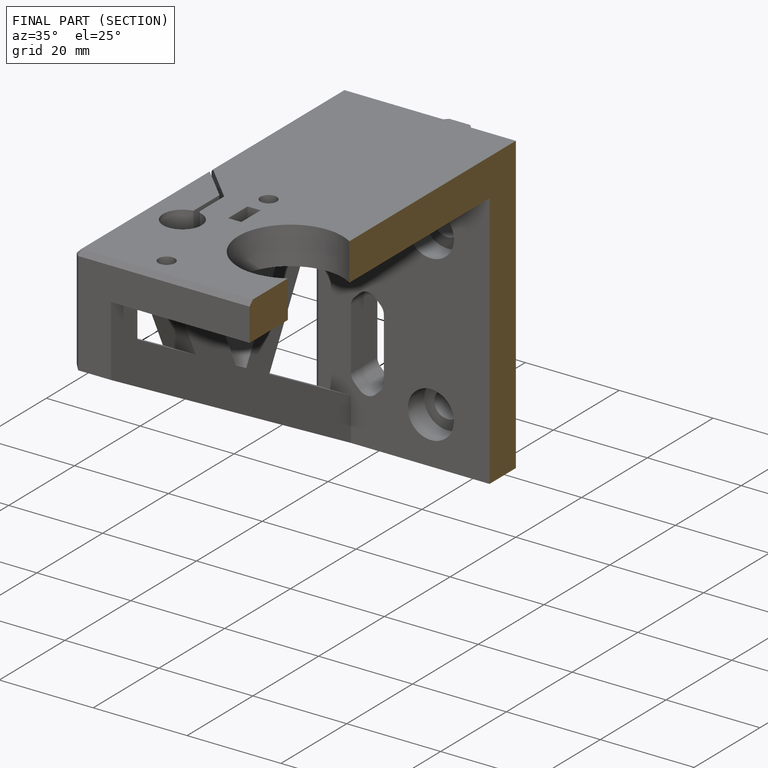
[diagram: finished part — half-section view (interior)]
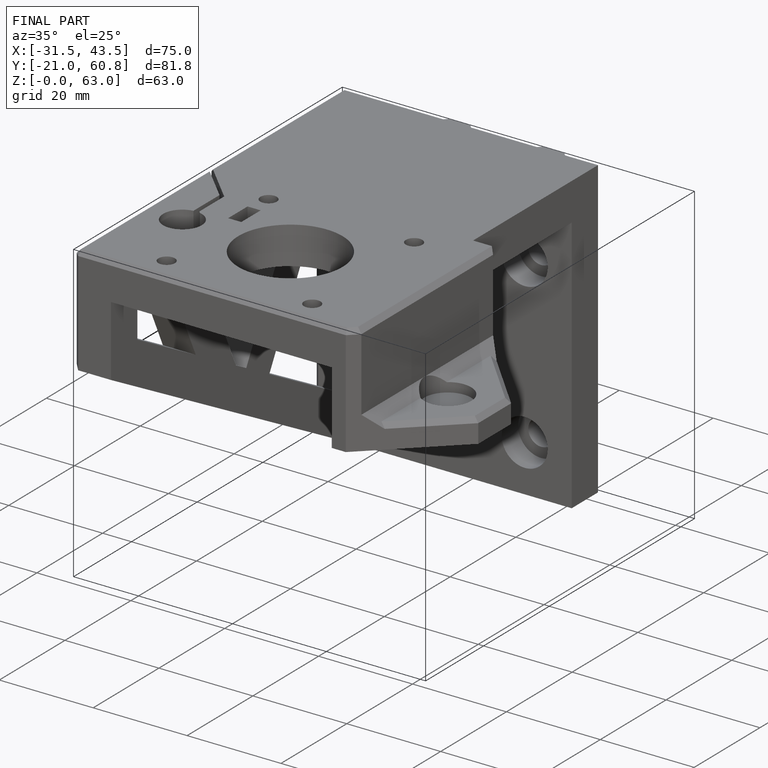
[diagram: finished part — iso view with bounding-box wireframe]
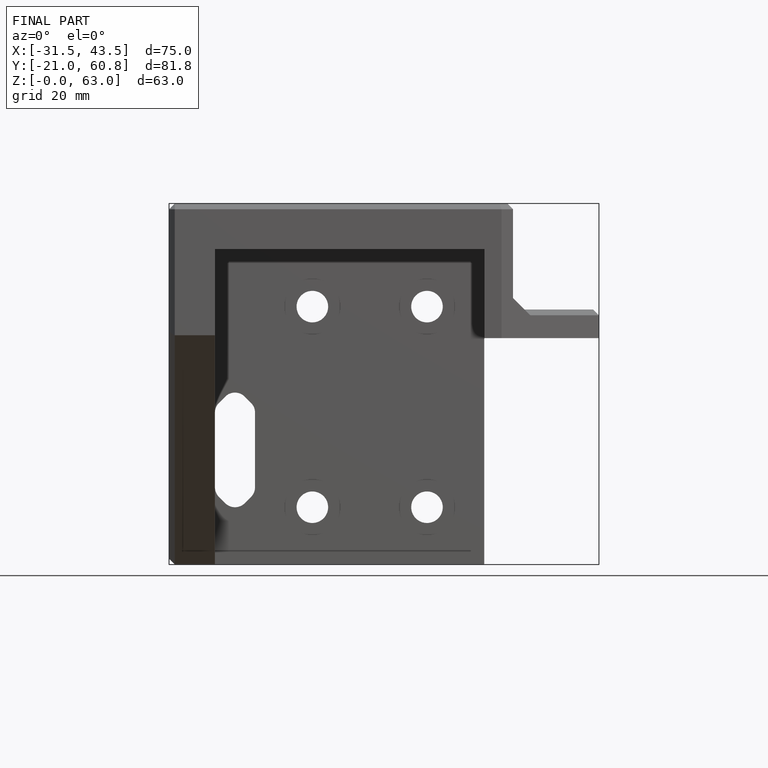
[diagram: finished part — front view with bounding-box wireframe]
